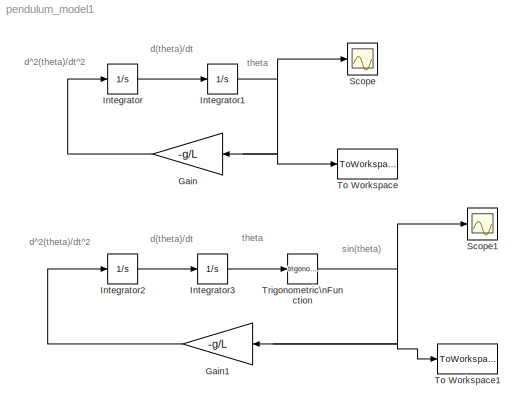
MODEL pendulum_model1
KIND model
BLOCK [Gain] Gain
  Gain = -g/L
  OutDataType = fixdt(1, 16)
  OutDataTypeMode = Inherit via internal rule
  OutDataTypeStr = Inherit: Inherit via internal rule
  OutScaling = 2^0
  ParamDataTypeStr = Inherit: Inherit via internal rule
  ParameterDataType = fixdt(1, 16)
  ParameterDataTypeMode = Inherit via internal rule
  ParameterScaling = 2^0
  SID = 3
  SaturateOnIntegerOverflow = off
BLOCK [Gain] Gain1
  Gain = -g/L
  OutDataType = fixdt(1, 16)
  OutDataTypeMode = Inherit via internal rule
  OutDataTypeStr = Inherit: Inherit via internal rule
  OutScaling = 2^0
  ParamDataTypeStr = Inherit: Inherit via internal rule
  ParameterDataType = fixdt(1, 16)
  ParameterDataTypeMode = Inherit via internal rule
  ParameterScaling = 2^0
  SID = 6
  SaturateOnIntegerOverflow = off
BLOCK [Integrator] Integrator
  Ports = [1, 1]
  SID = 1
BLOCK [Integrator] Integrator1
  InitialCondition = theta0*(pi/180)
  Ports = [1, 1]
  SID = 2
BLOCK [Integrator] Integrator2
  Ports = [1, 1]
  SID = 7
BLOCK [Integrator] Integrator3
  InitialCondition = theta0*(pi/180)
  Ports = [1, 1]
  SID = 8
BLOCK [Scope] Scope
  DataFormat = StructureWithTime
  Floating = off
  NumInputPorts = 1
  Ports = [1]
  SID = 5
  SampleTime = 0
BLOCK [Scope] Scope1
  DataFormat = StructureWithTime
  Floating = off
  NumInputPorts = 1
  Ports = [1]
  SID = 9
  SampleTime = 0
  SaveName = ScopeData1
BLOCK [ToWorkspace] To Workspace
  MaxDataPoints = inf
  Ports = [1]
  SID = 4
  SampleTime = -1
  SaveFormat = Array
  VariableName = theta
BLOCK [ToWorkspace] To Workspace1
  MaxDataPoints = inf
  Ports = [1]
  SID = 10
  SampleTime = -1
  SaveFormat = Array
  VariableName = theta1
BLOCK [Trigonometry] Trigonometric\nFunction
  Ports = [1, 1]
  SID = 11
ANNOTATION (root): d(theta)/dt
ANNOTATION (root): d^2(theta)/dt^2
ANNOTATION (root): sin(theta)
ANNOTATION (root): theta
LINE Gain1:1 -> Integrator2:1
LINE Gain:1 -> Integrator:1
NET Integrator1:1 -> Gain:1, Scope:1, To Workspace:1
LINE Integrator2:1 -> Integrator3:1
LINE Integrator3:1 -> Trigonometric\nFunction:1
LINE Integrator:1 -> Integrator1:1
NET Trigonometric\nFunction:1 -> Gain1:1, Scope1:1, To Workspace1:1
note: NET lines group one-source signal fan-out (src -> all destinations, sorted); 1:1 wires keep LINE
